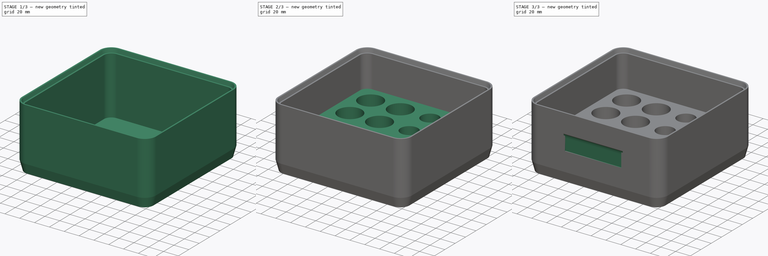
[diagram: build sequence overview — one tinted view per stage of 3, left to right]
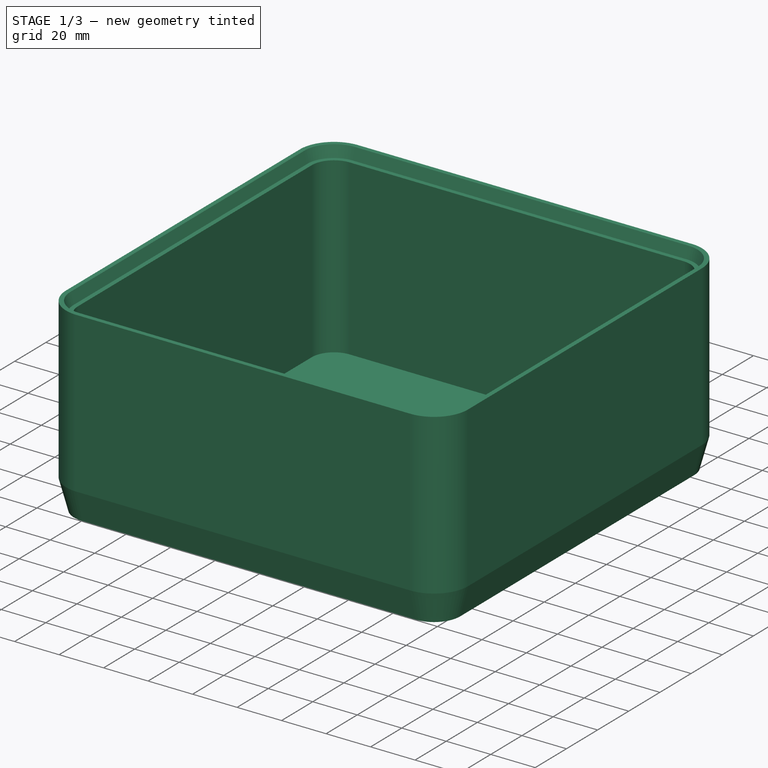
[diagram: stage 1 of 3 — iso view after this stage's code; geometry added in this stage tinted green]
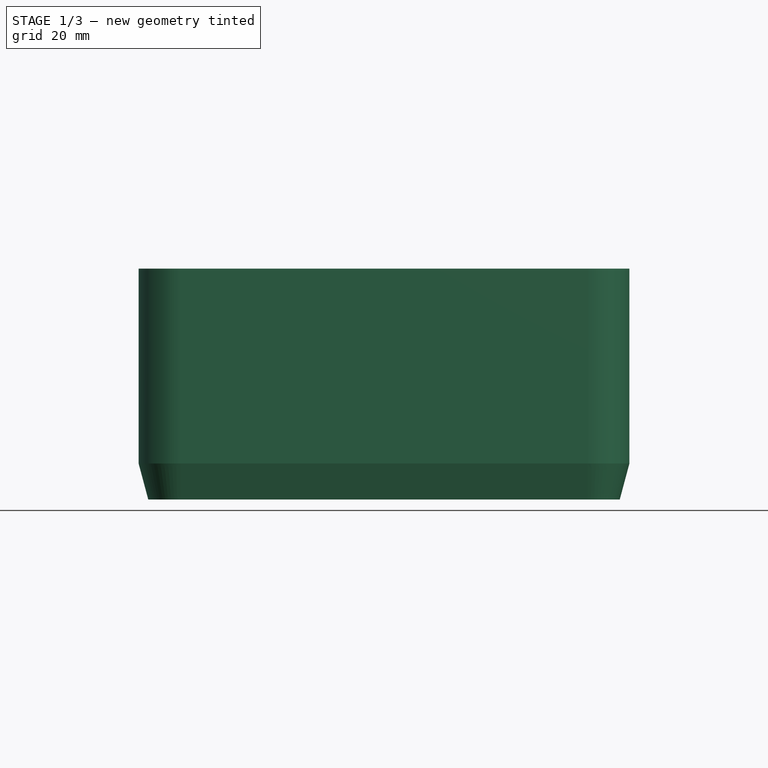
[diagram: stage 1 of 3 — front view after this stage's code; geometry added in this stage tinted green]
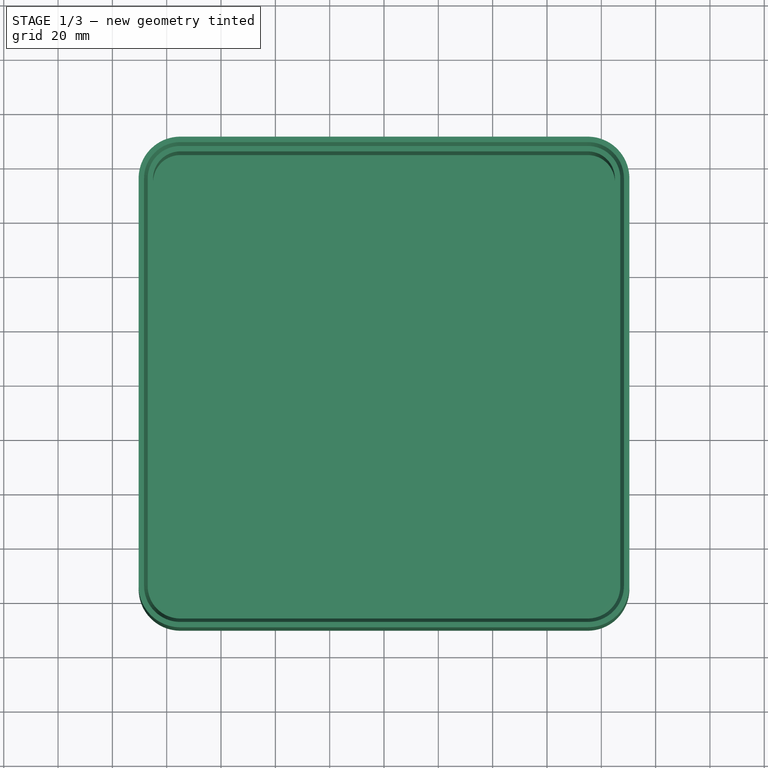
[diagram: stage 1 of 3 — top view after this stage's code; geometry added in this stage tinted green]
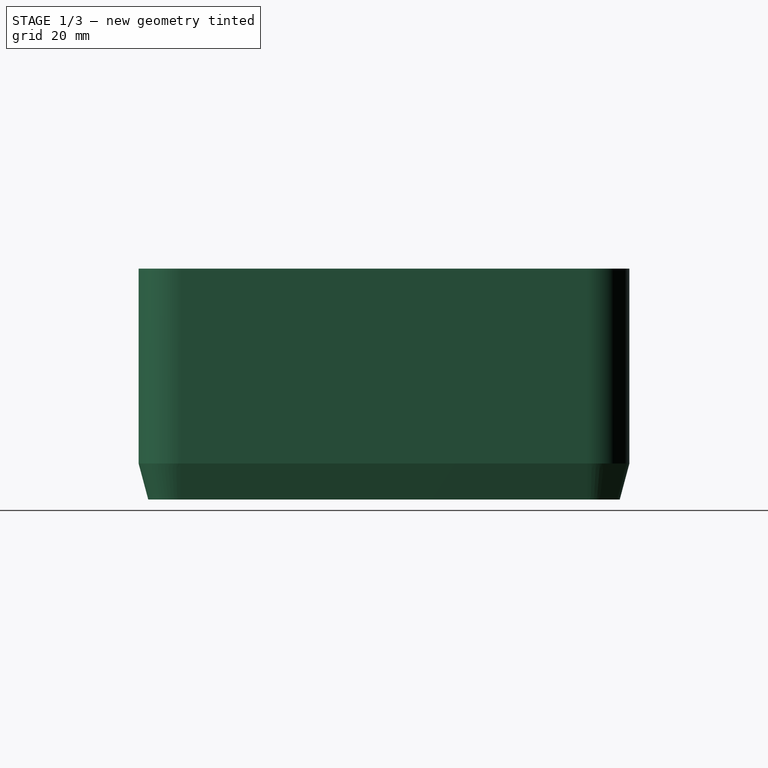
[diagram: stage 1 of 3 — right view after this stage's code; geometry added in this stage tinted green]
FCSTD DOCUMENT  (FreeCAD 1.0R39319 (Git))
Label: Box
License: All rights reserved
LicenseURL: https://en.wikipedia.org/wiki/All_rights_reserved
objects: Sketcher::SketchObject×6, PartDesign::Pad×2, PartDesign::AdditivePipe×1, PartDesign::SubtractivePipe×1, PartDesign::Pocket×1, PartDesign::Body×1, Spreadsheet::Sheet×1
note: 28 computed .brp shape members not serialized (recipe doc carries the construction recipe); baked Part::Feature solids carry a one-line shape summary decoded from their .brp

FEATURE [Sketcher::SketchObject] Sketch
  ArcFitTolerance = 1e-06
  AttachmentSupport = -> [XZ_Plane]
  FullyConstrained = true
  MakeInternals = false
  MapMode = 5
  Placement = pos=(0,0,0) rot=(1,0,0;1.5708rad)
  sketch-geometry (8):
    g0: LineSegment StartX=85 StartY=0 StartZ=0 EndX=86.8 EndY=0 EndZ=0
    g1: LineSegment StartX=86.8 StartY=0 StartZ=0 EndX=90.3397 EndY=13.2105 EndZ=0
    g2: LineSegment StartX=90.3397 StartY=13.2105 StartZ=0 EndX=90.3397 EndY=85 EndZ=0
    g3: LineSegment StartX=90.3397 StartY=85 StartZ=0 EndX=88.3397 EndY=85 EndZ=0
    g4: LineSegment StartX=88.3397 StartY=85 StartZ=0 EndX=87 EndY=80 EndZ=0
    g5: LineSegment StartX=87 StartY=80 StartZ=0 EndX=85 EndY=80 EndZ=0
    g6: LineSegment StartX=85 StartY=80 StartZ=0 EndX=85 EndY=0 EndZ=0
    g7: GeomPoint X=90.3397 Y=49.1053 Z=0
  constraints (23):
    c: PointOnObject(g0,g-1)
    c: Coincident(g0,g1)
    c: Coincident(g1,g2)
    c: Vertical(g2)
    c: Coincident(g2,g3)
    c: Horizontal(g3)
    c: Coincident(g3,g4)
    c: Coincident(g4,g5)
    c: Horizontal(g5)
    c: Coincident(g5,g6)
    c: Vertical(g6)
    c: Horizontal(g0)
    c: Coincident(g0,g6)
    c: Parallel(g1,g4)
    c: DistanceY(g4,g3) = 5
    c: Angle(g-1,g1) = 1.309
    c: Equal(g3,g5)
    c: DistanceX(g3,g3) = 2
    c: DistanceY(g6,g6) = 80
    c: DistanceX(g0) = 85
    c: DistanceX(g0,g0) = 1.8
    c: Symmetric(g2,g2,g7)
    c: DistanceY(g7) = 49.1053
FEATURE [Sketcher::SketchObject] Sketch001
  ArcFitTolerance = 1e-06
  AttachmentSupport = -> [XY_Plane]
  FullyConstrained = false
  MakeInternals = false
  MapMode = 5
  sketch-geometry (20):
    g0: Circle [constr] CenterX=20 CenterY=20 CenterZ=0 NormalX=0 NormalY=0 NormalZ=1 AngleXU=0 Radius=11.75
    g1: Circle [constr] CenterX=20 CenterY=20 CenterZ=0 NormalX=0 NormalY=0 NormalZ=1 AngleXU=0 Radius=20
    g2: Circle [constr] CenterX=60 CenterY=60 CenterZ=0 NormalX=0 NormalY=0 NormalZ=1 AngleXU=0 Radius=11.75
    g3: Circle [constr] CenterX=60 CenterY=60 CenterZ=0 NormalX=0 NormalY=0 NormalZ=1 AngleXU=0 Radius=20
    g4: Circle [constr] CenterX=20 CenterY=60 CenterZ=0 NormalX=0 NormalY=0 NormalZ=1 AngleXU=0 Radius=11.75
    g5: Circle [constr] CenterX=20 CenterY=60 CenterZ=0 NormalX=0 NormalY=0 NormalZ=1 AngleXU=0 Radius=20
    g6: Circle [constr] CenterX=60 CenterY=20 CenterZ=0 NormalX=0 NormalY=0 NormalZ=1 AngleXU=0 Radius=11.75
    g7: Circle [constr] CenterX=60 CenterY=20 CenterZ=0 NormalX=0 NormalY=0 NormalZ=1 AngleXU=0 Radius=20
    g8: LineSegment StartX=-85 StartY=75 StartZ=0 EndX=-85 EndY=-75 EndZ=0
    g9: LineSegment StartX=-75 StartY=-85 StartZ=0 EndX=75 EndY=-85 EndZ=0
    g10: LineSegment StartX=85 StartY=-75 StartZ=0 EndX=85 EndY=75 EndZ=0
    g11: LineSegment StartX=75 StartY=85 StartZ=0 EndX=-75 EndY=85 EndZ=0
    g12: ArcOfCircle CenterX=-75 CenterY=75 CenterZ=0 NormalX=0 NormalY=0 NormalZ=1 AngleXU=0 Radius=10 StartAngle=1.5708 EndAngle=3.14159
    g13: GeomPoint [constr] X=-85 Y=85 Z=0
    g14: ArcOfCircle CenterX=75 CenterY=75 CenterZ=0 NormalX=0 NormalY=0 NormalZ=1 AngleXU=0 Radius=10 StartAngle=0 EndAngle=1.5708
    g15: GeomPoint [constr] X=85 Y=85 Z=0
    g16: ArcOfCircle CenterX=75 CenterY=-75 CenterZ=0 NormalX=0 NormalY=0 NormalZ=1 AngleXU=0 Radius=10 StartAngle=4.71239 EndAngle=6.28319
    g17: GeomPoint [constr] X=85 Y=-85 Z=0
    g18: ArcOfCircle CenterX=-75 CenterY=-75 CenterZ=0 NormalX=0 NormalY=0 NormalZ=1 AngleXU=0 Radius=10 StartAngle=3.14159 EndAngle=4.71239
    g19: GeomPoint [constr] X=-85 Y=-85 Z=0
  constraints (45):
    c: Diameter(g0) = 23.5
    c: Coincident(g1,g0)
    c: Diameter(g1) = 40
    c: Coincident(g3,g2)
    c: Coincident(g5,g4)
    c: Tangent(g5,g1)
    c: Tangent(g5,g3)
    c: Tangent(g3,g7)
    c: Tangent(g1,g7)
    c: Vertical(g4,g0)
    c: Horizontal(g4,g2)
    c: Equal(g3,g7)
    c: Equal(g7,g1)
    c: Equal(g1,g5)
    c: Equal(g6,g2)
    c: Equal(g2,g4)
    c: Equal(g4,g0)
    c: Tangent(g1,g-2)
    c: Vertical(g8)
    c: Vertical(g10)
    c: Horizontal(g9)
    c: Horizontal(g11)
    c: Symmetric(g13,g17,g-1)
    c: PointOnObject(g13,g8)
    c: PointOnObject(g13,g11)
    c: Tangent(g8,g12) = -1.5708
    c: Tangent(g11,g12) = -1.5708
    c: PointOnObject(g15,g11)
    c: PointOnObject(g15,g10)
    c: Tangent(g11,g14) = -1.5708
    c: Tangent(g10,g14) = -1.5708
    c: PointOnObject(g17,g10)
    c: PointOnObject(g17,g9)
    c: Tangent(g10,g16) = -1.5708
    c: Tangent(g9,g16) = -1.5708
    c: PointOnObject(g19,g9)
    c: PointOnObject(g19,g8)
    c: Tangent(g9,g18) = -1.5708
    c: Tangent(g8,g18) = -1.5708
    c: Equal(g14,g12)
    c: Equal(g12,g18)
    c: Equal(g18,g16)
    c: Radius(g14) = 10
    c: Equal(g10,g11)
    c: Distance(g-1,g10) = 85
FEATURE [PartDesign::AdditivePipe] AdditivePipe  label="sseite"
  AuxilleryCurvelinear = true
  AuxillerySpineTangent = false
  Binormal = (0,0,0)
  Mode = 0
  Placement = pos=(0,0,0) rot=(1,0,0;1.5708rad)
  Profile = -> Sketch
  Refine = true
  Spine = -> Sketch001
  SpineTangent = false
  Suppressed = false
  Transformation = 0
  Transition = 0
FEATURE [Sketcher::SketchObject] Sketch002
  ArcFitTolerance = 1e-06
  AttachmentOffset = pos=(0,0,2) rot=(0,0,1;0rad)
  AttachmentSupport = -> [XY_Plane]
  FullyConstrained = true
  MakeInternals = false
  MapMode = 5
  Placement = pos=(0,0,2) rot=(0,0,1;0rad)
  sketch-geometry (39):
    g0: Circle CenterX=20 CenterY=-60 CenterZ=0 NormalX=0 NormalY=0 NormalZ=1 AngleXU=0 Radius=11.75
    g1: Circle [constr] CenterX=20 CenterY=-60 CenterZ=0 NormalX=0 NormalY=0 NormalZ=1 AngleXU=0 Radius=20
    g2: Circle CenterX=60 CenterY=-20 CenterZ=0 NormalX=0 NormalY=0 NormalZ=1 AngleXU=0 Radius=11.75
    g3: Circle [constr] CenterX=60 CenterY=-20 CenterZ=0 NormalX=0 NormalY=0 NormalZ=1 AngleXU=0 Radius=20
    g4: Circle CenterX=20 CenterY=-20 CenterZ=0 NormalX=0 NormalY=0 NormalZ=1 AngleXU=0 Radius=11.75
    g5: Circle [constr] CenterX=20 CenterY=-20 CenterZ=0 NormalX=0 NormalY=0 NormalZ=1 AngleXU=0 Radius=20
    g6: Circle CenterX=60 CenterY=-60 CenterZ=0 NormalX=0 NormalY=0 NormalZ=1 AngleXU=0 Radius=11.75
    g7: Circle [constr] CenterX=60 CenterY=-60 CenterZ=0 NormalX=0 NormalY=0 NormalZ=1 AngleXU=0 Radius=20
    g8: Circle CenterX=20 CenterY=20 CenterZ=0 NormalX=0 NormalY=0 NormalZ=1 AngleXU=0 Radius=11.75
    g9: Circle [constr] CenterX=20 CenterY=20 CenterZ=0 NormalX=0 NormalY=0 NormalZ=1 AngleXU=0 Radius=20
    g10: Circle CenterX=60 CenterY=60 CenterZ=0 NormalX=0 NormalY=0 NormalZ=1 AngleXU=0 Radius=11.75
    g11: Circle [constr] CenterX=60 CenterY=60 CenterZ=0 NormalX=0 NormalY=0 NormalZ=1 AngleXU=0 Radius=20
    g12: Circle CenterX=20 CenterY=60 CenterZ=0 NormalX=0 NormalY=0 NormalZ=1 AngleXU=0 Radius=11.75
    g13: Circle [constr] CenterX=20 CenterY=60 CenterZ=0 NormalX=0 NormalY=0 NormalZ=1 AngleXU=0 Radius=20
    g14: Circle CenterX=60 CenterY=20 CenterZ=0 NormalX=0 NormalY=0 NormalZ=1 AngleXU=0 Radius=11.75
    g15: Circle [constr] CenterX=60 CenterY=20 CenterZ=0 NormalX=0 NormalY=0 NormalZ=1 AngleXU=0 Radius=20
    g16: LineSegment StartX=-85 StartY=75 StartZ=0 EndX=-85 EndY=-75 EndZ=0
    g17: LineSegment StartX=-75 StartY=-85 StartZ=0 EndX=75 EndY=-85 EndZ=0
    g18: LineSegment StartX=85 StartY=-75 StartZ=0 EndX=85 EndY=75 EndZ=0
    g19: LineSegment StartX=75 StartY=85 StartZ=0 EndX=-75 EndY=85 EndZ=0
    g20: ArcOfCircle CenterX=-75 CenterY=75 CenterZ=0 NormalX=0 NormalY=0 NormalZ=1 AngleXU=0 Radius=10 StartAngle=1.5708 EndAngle=3.14159
    g21: GeomPoint [constr] X=-85 Y=85 Z=0
    g22: ArcOfCircle CenterX=75 CenterY=75 CenterZ=0 NormalX=0 NormalY=0 NormalZ=1 AngleXU=0 Radius=10 StartAngle=0 EndAngle=1.5708
    g23: GeomPoint [constr] X=85 Y=85 Z=0
    g24: ArcOfCircle CenterX=75 CenterY=-75 CenterZ=0 NormalX=0 NormalY=0 NormalZ=1 AngleXU=0 Radius=10 StartAngle=4.71239 EndAngle=6.28319
    g25: GeomPoint [constr] X=85 Y=-85 Z=0
    g26: ArcOfCircle CenterX=-75 CenterY=-75 CenterZ=0 NormalX=0 NormalY=0 NormalZ=1 AngleXU=0 Radius=10 StartAngle=3.14159 EndAngle=4.71239
    g27: GeomPoint [constr] X=-85 Y=-85 Z=0
    g28: Circle CenterX=-60 CenterY=20 CenterZ=0 NormalX=0 NormalY=0 NormalZ=1 AngleXU=0 Radius=16
    g29: Circle CenterX=-20 CenterY=20 CenterZ=0 NormalX=0 NormalY=0 NormalZ=1 AngleXU=0 Radius=16
    g30: Circle CenterX=-60 CenterY=60 CenterZ=0 NormalX=0 NormalY=0 NormalZ=1 AngleXU=0 Radius=16
    g31: Circle CenterX=-20 CenterY=60 CenterZ=0 NormalX=0 NormalY=0 NormalZ=1 AngleXU=0 Radius=16
    g32: Circle CenterX=-60 CenterY=-60 CenterZ=0 NormalX=0 NormalY=0 NormalZ=1 AngleXU=0 Radius=16
    g33: Circle CenterX=-20 CenterY=-60 CenterZ=0 NormalX=0 NormalY=0 NormalZ=1 AngleXU=0 Radius=16
    g34: Circle CenterX=-60 CenterY=-20 CenterZ=0 NormalX=0 NormalY=0 NormalZ=1 AngleXU=0 Radius=16
    g35: Circle CenterX=-20 CenterY=-20 CenterZ=0 NormalX=0 NormalY=0 NormalZ=1 AngleXU=0 Radius=16
    g36: LineSegment [constr] StartX=-60 StartY=20 StartZ=0 EndX=-20 EndY=20 EndZ=0
    g37: LineSegment [constr] StartX=-20 StartY=20 StartZ=0 EndX=20 EndY=20 EndZ=0
    g38: LineSegment [constr] StartX=20 StartY=20 StartZ=0 EndX=60 EndY=20 EndZ=0
  constraints (97):
    c: Coincident(g1,g0)
    c: Coincident(g3,g2)
    c: Coincident(g5,g4)
    c: Coincident(g7,g6)
    c: Tangent(g5,g1)
    c: Tangent(g5,g3)
    c: Tangent(g3,g7)
    c: Tangent(g1,g7)
    c: Vertical(g4,g0)
    c: Horizontal(g4,g2)
    c: Equal(g3,g7)
    c: Equal(g7,g1)
    c: Equal(g1,g5)
    c: Equal(g6,g2)
    c: Equal(g2,g4)
    c: Equal(g4,g0)
    c: Diameter(g8) = 23.5
    c: Coincident(g9,g8)
    c: Diameter(g9) = 40
    c: Coincident(g11,g10)
    c: Coincident(g13,g12)
    c: Tangent(g13,g9)
    c: Tangent(g13,g11)
    c: Tangent(g11,g15)
    c: Tangent(g9,g15)
    c: Vertical(g12,g8)
    c: Horizontal(g12,g10)
    c: Equal(g11,g15)
    c: Equal(g15,g9)
    c: Equal(g9,g13)
    c: Equal(g14,g10)
    c: Equal(g10,g12)
    c: Equal(g12,g8)
    c: Tangent(g5,g-1)
    c: Vertical(g8,g4)
    c: Tangent(g9,g5)
    c: Tangent(g9,g-2)
    c: Equal(g5,g9)
    c: Equal(g4,g8)
    c: Vertical(g16)
    c: Vertical(g18)
    c: Horizontal(g17)
    c: Horizontal(g19)
    c: Symmetric(g21,g25,g-1)
    c: PointOnObject(g21,g16)
    c: PointOnObject(g21,g19)
    c: Tangent(g16,g20) = -1.5708
    c: Tangent(g19,g20) = -1.5708
    c: PointOnObject(g23,g19)
    c: PointOnObject(g23,g18)
    c: Tangent(g19,g22) = -1.5708
    c: Tangent(g18,g22) = -1.5708
    c: PointOnObject(g25,g18)
    c: PointOnObject(g25,g17)
    c: Tangent(g18,g24) = -1.5708
    c: Tangent(g17,g24) = -1.5708
    c: PointOnObject(g27,g17)
    c: PointOnObject(g27,g16)
    c: Tangent(g17,g26) = -1.5708
    c: Tangent(g16,g26) = -1.5708
    c: Equal(g22,g20)
    c: Equal(g20,g26)
    c: Equal(g26,g24)
    c: Radius(g22) = 10
    c: Equal(g18,g19)
    c: Distance(g-1,g18) = 85
    c: Coincident(g14,g15)
    c: Equal(g28,g29)
    c: Diameter(g29) = 32
    c: Horizontal(g29,g8)
    c: Horizontal(g8,g28)
    c: Equal(g30,g31)
    c: Equal(g32,g33)
    c: Horizontal(g32,g33)
    c: Equal(g34,g35)
    c: Horizontal(g34,g35)
    c: Horizontal(g31,g30)
    c: Vertical(g31,g29)
    c: Equal(g31,g29)
    c: Vertical(g34,g28)
    c: Vertical(g32,g28)
    c: Vertical(g33,g35)
    c: Vertical(g35,g29)
    c: Horizontal(g33,g0)
    c: Horizontal(g35,g4)
    c: Horizontal(g31,g12)
    c: Vertical(g28,g30)
    c: Coincident(g36,g28)
    c: Coincident(g36,g29)
    c: Coincident(g36,g37)
    c: Coincident(g37,g8)
    c: Equal(g37,g36)
    c: Coincident(g38,g8)
    c: Coincident(g38,g14)
    c: Equal(g38,g37)
    c: Equal(g35,g32)
    c: Equal(g33,g29)
FEATURE [PartDesign::Pad] Pad  label="boden"
  BaseFeature = -> AdditivePipe
  Direction = (0,0,1)
  Length = 2
  Length2 = 10
  Placement = pos=(0,0,0) rot=(1,0,0;1.5708rad)
  Profile = -> Sketch001
  ReferenceAxis = -> Sketch001 [N_Axis]
  Refine = true
  Suppressed = false
  Type = 0
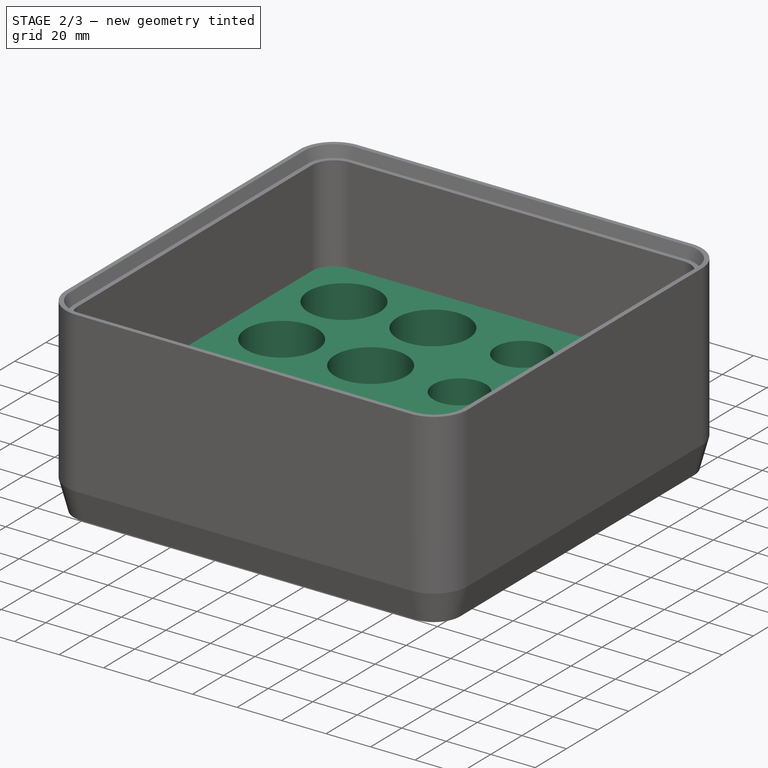
[diagram: stage 2 of 3 — iso view after this stage's code; geometry added in this stage tinted green]
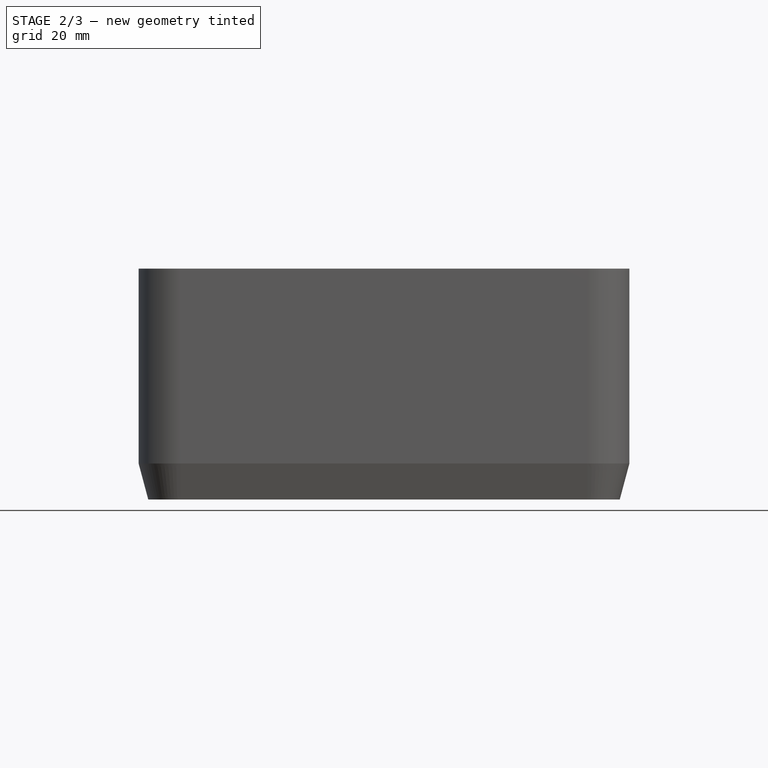
[diagram: stage 2 of 3 — front view after this stage's code; geometry added in this stage tinted green]
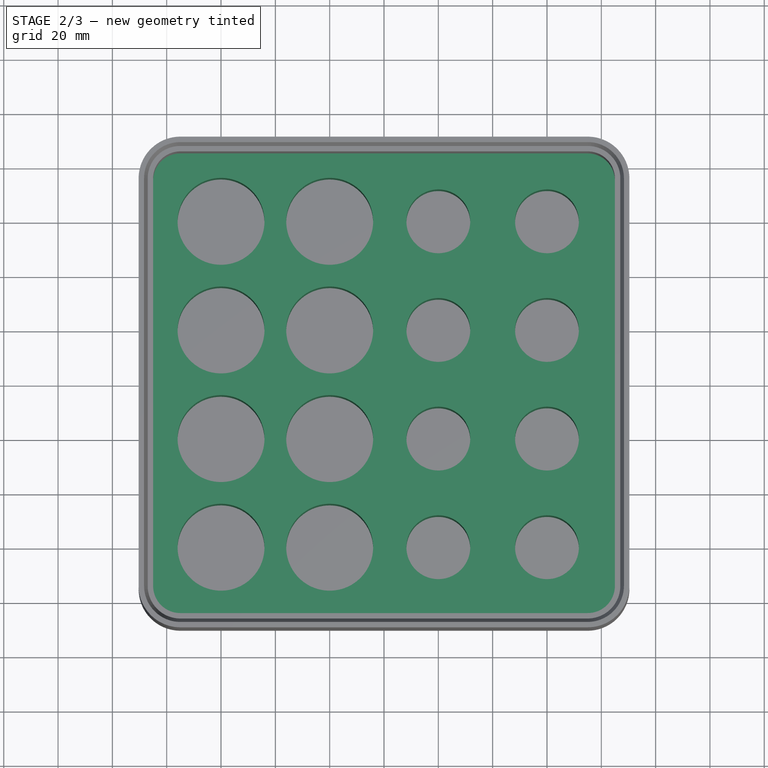
[diagram: stage 2 of 3 — top view after this stage's code; geometry added in this stage tinted green]
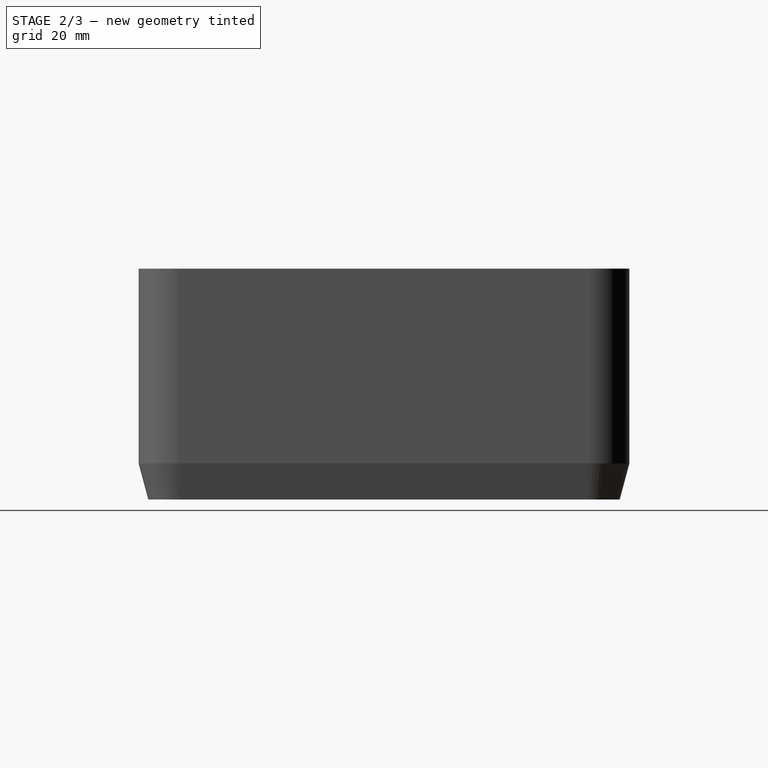
[diagram: stage 2 of 3 — right view after this stage's code; geometry added in this stage tinted green]
FEATURE [PartDesign::Pad] Pad001  label="inhalt"
  BaseFeature = -> Pad
  Direction = (0,0,1)
  Length = 35
  Length2 = 10
  Placement = pos=(0,0,0) rot=(1,0,0;1.5708rad)
  Profile = -> Sketch002
  ReferenceAxis = -> Sketch002 [N_Axis]
  Refine = true
  Suppressed = false
  Type = 0
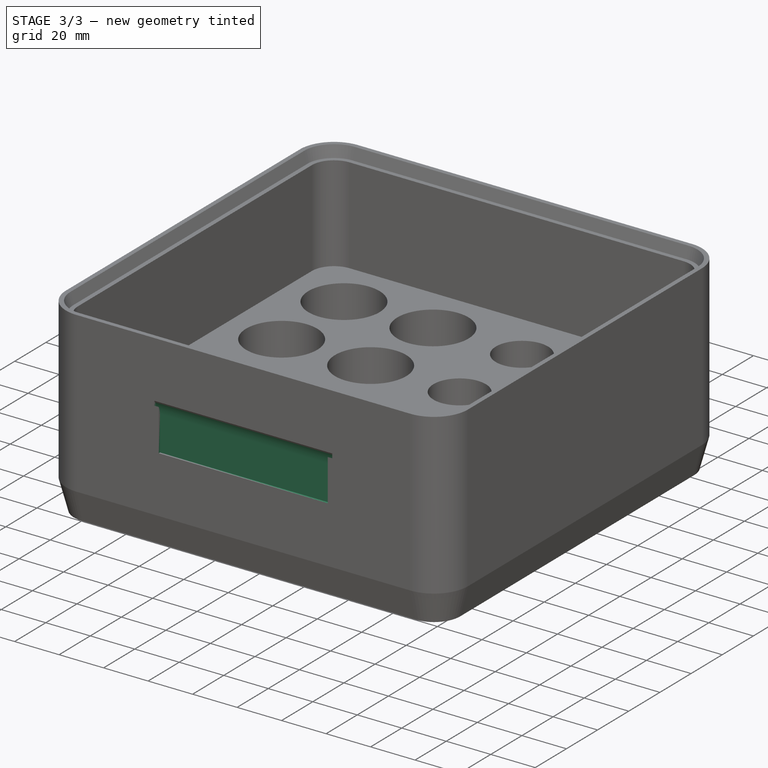
[diagram: stage 3 of 3 — iso view after this stage's code; geometry added in this stage tinted green]
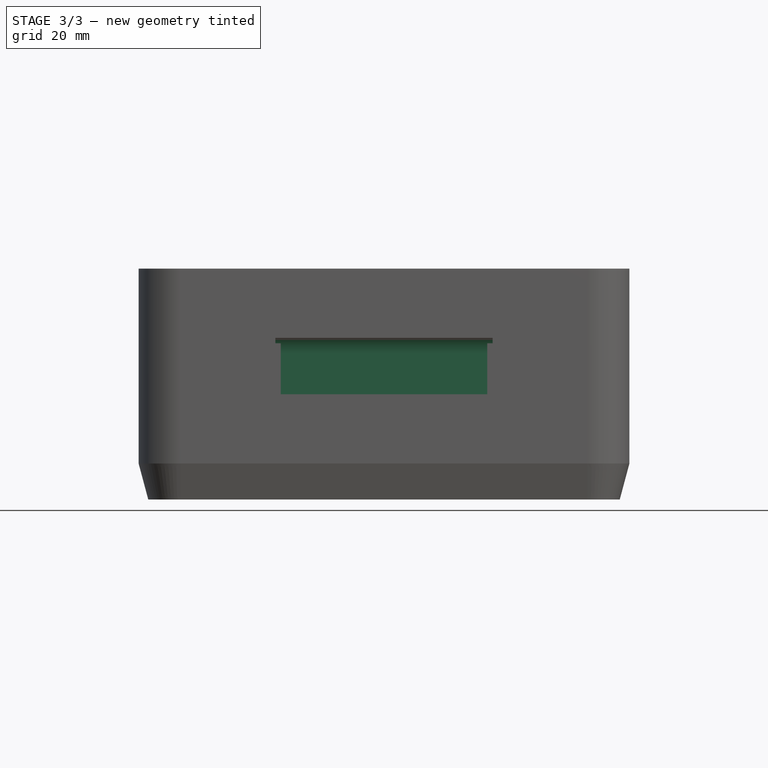
[diagram: stage 3 of 3 — front view after this stage's code; geometry added in this stage tinted green]
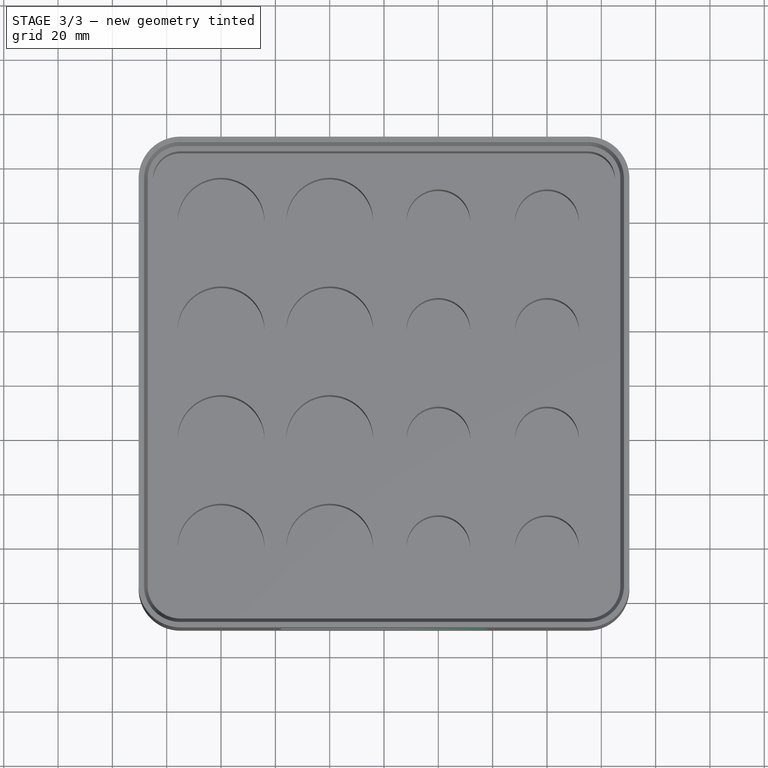
[diagram: stage 3 of 3 — top view after this stage's code; geometry added in this stage tinted green]
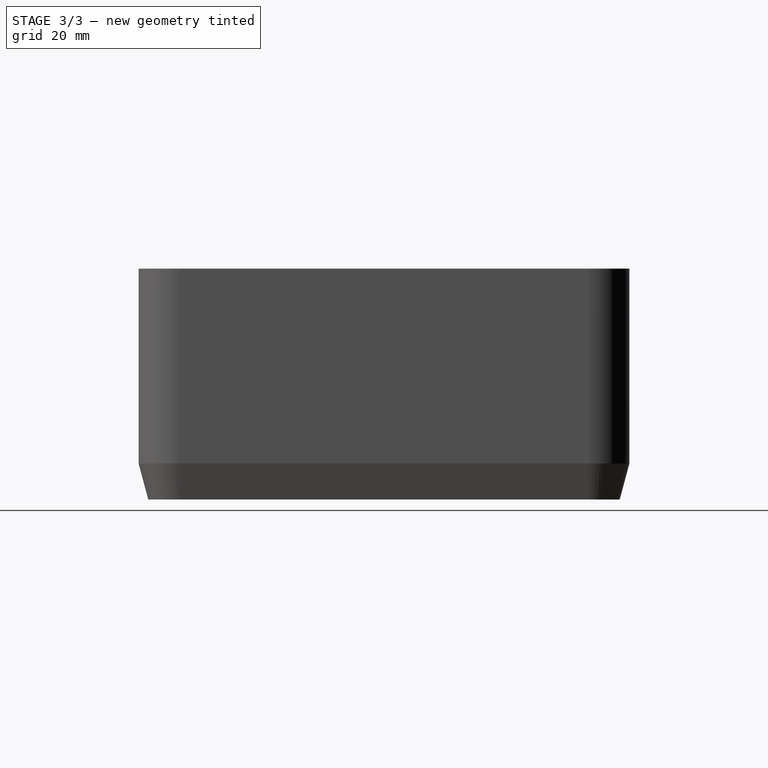
[diagram: stage 3 of 3 — right view after this stage's code; geometry added in this stage tinted green]
FEATURE [Sketcher::SketchObject] Sketch006  label="Sketch004"
  ArcFitTolerance = 1e-06
  AttachmentSupport = -> [YZ_Plane]
  FullyConstrained = true
  MakeInternals = false
  MapMode = 5
  Placement = pos=(0,0,0) rot=(0.57735,0.57735,0.57735;2.0944rad)
  expr: Constraints[5] = <<tab>>.H_schild
  sketch-geometry (2):
    g0: ArcOfCircle CenterX=-98.5 CenterY=53.7152 CenterZ=0 NormalX=0 NormalY=0 NormalZ=1 AngleXU=0 Radius=10 StartAngle=0 EndAngle=1.0472
    g1: LineSegment StartX=-88.5 StartY=53.7152 StartZ=0 EndX=-88.5 EndY=38.7152 EndZ=0
  constraints (7):
    c: Tangent(g0,g1) = 1.5708
    c: Vertical(g1)
    c: DistanceY(g1,g1) = 15
    c: Radius(g0) = 10
    c: DistanceX(g0,g0) = 5
    c: DistanceY(g1) = 38.7152
    c: DistanceX(g1) = -88.5
FEATURE [Sketcher::SketchObject] Sketch007  label="Sketch003"
  ArcFitTolerance = 1e-06
  AttachmentOffset = pos=(0,0,38.7152) rot=(0,0,1;0rad)
  AttachmentSupport = -> [XY_Plane]
  FullyConstrained = true
  MakeInternals = false
  MapMode = 5
  Placement = pos=(0,0,38.7152) rot=(0,0,1;0rad)
  expr: .AttachmentOffset.Base.z = <<tab>>.H_schild
  sketch-geometry (9):
    g0: LineSegment StartX=-40 StartY=-88.5 StartZ=0 EndX=40 EndY=-88.5 EndZ=0
    g1: LineSegment StartX=40 StartY=-88.5 StartZ=0 EndX=40 EndY=-89.5 EndZ=0
    g2: LineSegment StartX=38 StartY=-89.5 StartZ=0 EndX=40 EndY=-89.5 EndZ=0
    g3: LineSegment StartX=38 StartY=-89.5 StartZ=0 EndX=38 EndY=-91.5 EndZ=0
    g4: LineSegment StartX=38 StartY=-91.5 StartZ=0 EndX=-38 EndY=-91.5 EndZ=0
    g5: LineSegment StartX=-38 StartY=-91.5 StartZ=0 EndX=-38 EndY=-89.5 EndZ=0
    g6: LineSegment StartX=-38 StartY=-89.5 StartZ=0 EndX=-40 EndY=-89.5 EndZ=0
    g7: LineSegment StartX=-40 StartY=-89.5 StartZ=0 EndX=-40 EndY=-88.5 EndZ=0
    g8: GeomPoint X=0 Y=-88.5 Z=0
  constraints (25):
    c: Horizontal(g0)
    c: Coincident(g0,g1)
    c: Vertical(g1)
    c: Horizontal(g2)
    c: Vertical(g3)
    c: Coincident(g3,g4)
    c: Horizontal(g4)
    c: Coincident(g4,g5)
    c: Vertical(g5)
    c: Coincident(g5,g6)
    c: Horizontal(g6)
    c: Coincident(g6,g7)
    c: Vertical(g7)
    c: Coincident(g0,g7)
    c: DistanceX(g6,g6) = 2
    c: DistanceY(g7,g7) = 1
    c: Equal(g5,g6)
    c: Equal(g6,g2)
    c: Equal(g2,g3)
    c: DistanceY(g0) = -88.5
    c: PointOnObject(g8,g-2)
    c: Symmetric(g0,g0,g8)
    c: DistanceX(g0,g0) = 80
    c: Coincident(g1,g2)
    c: Coincident(g2,g3)
FEATURE [Sketcher::SketchObject] Sketch008  label="Sketch005"
  ArcFitTolerance = 1e-06
  AttachmentOffset = pos=(0,0,38.7152) rot=(0,0,1;0rad)
  AttachmentSupport = -> [XY_Plane]
  FullyConstrained = true
  MakeInternals = false
  MapMode = 5
  Placement = pos=(0,0,38.7152) rot=(0,0,1;0rad)
  expr: .AttachmentOffset.Base.z = <<tab>>.H_schild
  sketch-geometry (5):
    g0: LineSegment StartX=-40 StartY=-88.5 StartZ=0 EndX=40 EndY=-88.5 EndZ=0
    g1: LineSegment StartX=40 StartY=-88.5 StartZ=0 EndX=40 EndY=-89.5 EndZ=0
    g2: LineSegment StartX=40 StartY=-89.5 StartZ=0 EndX=-40 EndY=-89.5 EndZ=0
    g3: LineSegment StartX=-40 StartY=-89.5 StartZ=0 EndX=-40 EndY=-88.5 EndZ=0
    g4: GeomPoint X=0 Y=-88.5 Z=0
  constraints (13):
    c: Horizontal(g0)
    c: Coincident(g0,g1)
    c: Vertical(g1)
    c: Horizontal(g2)
    c: Coincident(g2,g3)
    c: Vertical(g3)
    c: Coincident(g0,g3)
    c: DistanceY(g3,g3) = 1
    c: DistanceY(g0) = -88.5
    c: PointOnObject(g4,g-2)
    c: Symmetric(g0,g0,g4)
    c: DistanceX(g0,g0) = 80
    c: Coincident(g1,g2)
FEATURE [PartDesign::SubtractivePipe] SubtractivePipe  label="schild"
  AuxilleryCurvelinear = true
  AuxillerySpineTangent = false
  BaseFeature = -> Pad001
  Binormal = (0,0,0)
  Mode = 0
  Placement = pos=(0,0,0) rot=(1,0,0;1.5708rad)
  Profile = -> Sketch007
  Refine = true
  Spine = -> Sketch006
  SpineTangent = false
  Suppressed = false
  Transformation = 0
  Transition = 0
FEATURE [PartDesign::Pocket] Pocket
  BaseFeature = -> SubtractivePipe
  Direction = (0,0,-1)
  Length = 2
  Length2 = 5
  Placement = pos=(0,0,0) rot=(1,0,0;1.5708rad)
  Profile = -> Sketch008
  ReferenceAxis = -> Sketch008 [N_Axis]
  Refine = true
  Suppressed = false
  Type = 0
FEATURE [PartDesign::Body] Body
  AllowCompound = false
  Group = -> [Sketch,Sketch001,AdditivePipe,Sketch002,Pad,Pad001,SubtractivePipe,Sketch006,Sketch007,Sketch008,Pocket]
  Origin = -> Origin
  Tip = -> Pocket
FEATURE [Spreadsheet::Sheet] Spreadsheet  label="tab"
  cells = A1='H_schild; B1(H_schild)==49.1053 - B_schild / 2; A2='B_schild; B2(B_schild)=20.7802
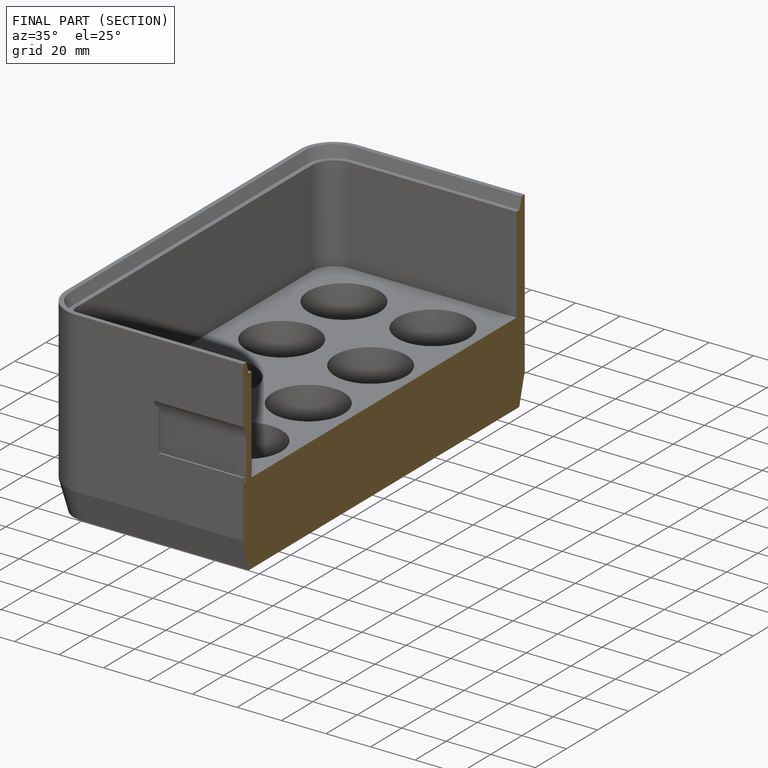
[diagram: finished part — half-section view (interior)]
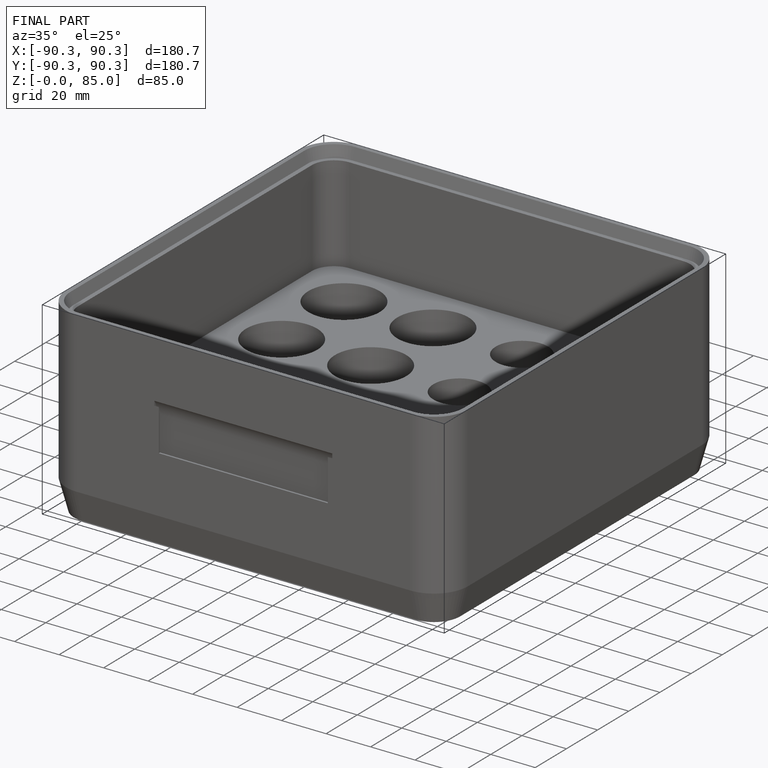
[diagram: finished part — iso view with bounding-box wireframe]
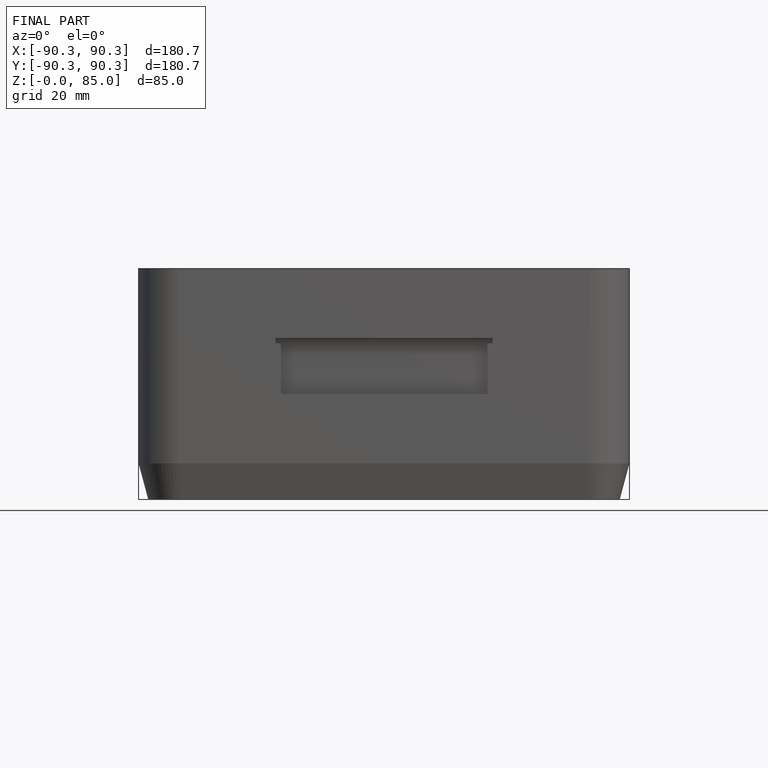
[diagram: finished part — front view with bounding-box wireframe]
